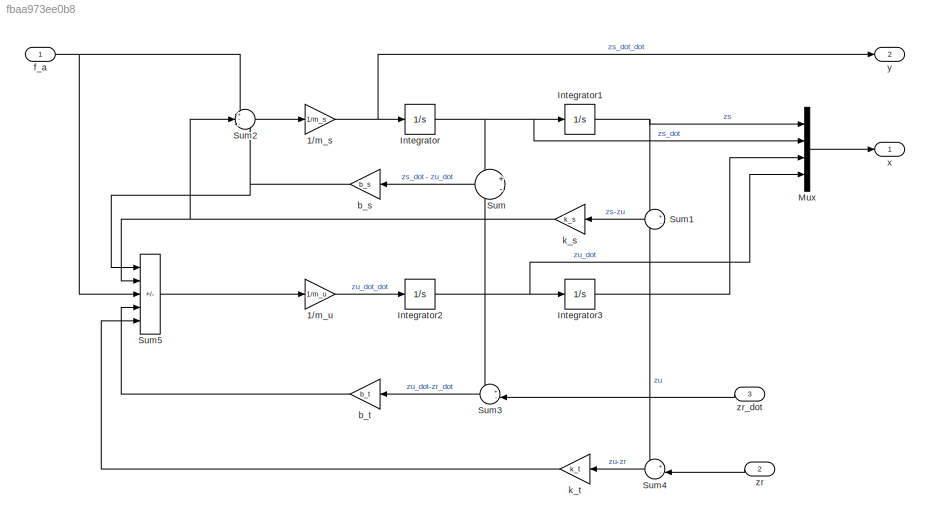
MODEL slx_fbaa973ee0b8
KIND model
CONFIG AbsTol = auto
CONFIG EnableMultiTasking = off
CONFIG FixedStep = STEP_SIZE
CONFIG MaxStep = auto
CONFIG MinStep = auto
CONFIG RelTol = 1e-3
CONFIG SampleTimeConstraint = Unconstrained
CONFIG SolverName = ode4
CONFIG StartTime = 0.0
CONFIG StopTime = SIM_TIME
BLOCK [Gain] 1//m_s
  Gain = 1/m_s
BLOCK [Gain] 1//m_u
  Gain = 1/m_u
BLOCK [Integrator] Integrator
  Ports = [1, 1]
BLOCK [Integrator] Integrator1
  InitialCondition = x0(1)
  Ports = [1, 1]
BLOCK [Integrator] Integrator2
  Ports = [1, 1]
BLOCK [Integrator] Integrator3
  Ports = [1, 1]
BLOCK [Mux] Mux
  DisplayOption = bar
  Ports = [4, 1]
BLOCK [Sum] Sum
  Inputs = +-
  NameLocation = top
  Ports = [2, 1]
BLOCK [Sum] Sum1
  Inputs = +-
  NameLocation = top
  Ports = [2, 1]
BLOCK [Sum] Sum2
  Inputs = +--
  Ports = [3, 1]
BLOCK [Sum] Sum3
  Inputs = +-|
  NameLocation = top
  Ports = [2, 1]
BLOCK [Sum] Sum4
  Inputs = +-|
  NameLocation = top
  Ports = [2, 1]
BLOCK [Sum] Sum5
  IconShape = rectangular
  Inputs = ++---
  Ports = [5, 1]
BLOCK [Gain] b_s
  Gain = b_s
BLOCK [Gain] b_t
  Gain = b_t
BLOCK [Inport] f_a
BLOCK [Gain] k_s
  Gain = k_s
BLOCK [Gain] k_t
  Gain = k_t
BLOCK [Outport] x
BLOCK [Outport] y
  Port = 2
BLOCK [Inport] zr
  Port = 2
BLOCK [Inport] zr_dot
  Port = 3
NET 1//m_s:1 -> Integrator:1, y:1
LINE 1//m_u:1 -> Integrator2:1
NET Integrator1:1 -> Mux:1, Sum1:1
NET Integrator2:1 -> Integrator3:1, Mux:4, Sum3:1, Sum:2
NET Integrator3:1 -> Mux:3, Sum1:2, Sum4:1
NET Integrator:1 -> Integrator1:1, Mux:2, Sum:1
LINE Mux:1 -> x:1
LINE Sum1:1 -> k_s:1
LINE Sum2:1 -> 1//m_s:1
LINE Sum3:1 -> b_t:1
LINE Sum4:1 -> k_t:1
LINE Sum5:1 -> 1//m_u:1
LINE Sum:1 -> b_s:1
NET b_s:1 -> Sum2:3, Sum5:1
LINE b_t:1 -> Sum5:4
NET f_a:1 -> Sum2:1, Sum5:3
NET k_s:1 -> Sum2:2, Sum5:2
LINE k_t:1 -> Sum5:5
LINE zr:1 -> Sum4:2
LINE zr_dot:1 -> Sum3:2
note: NET lines group one-source signal fan-out (src -> all destinations, sorted); 1:1 wires keep LINE
